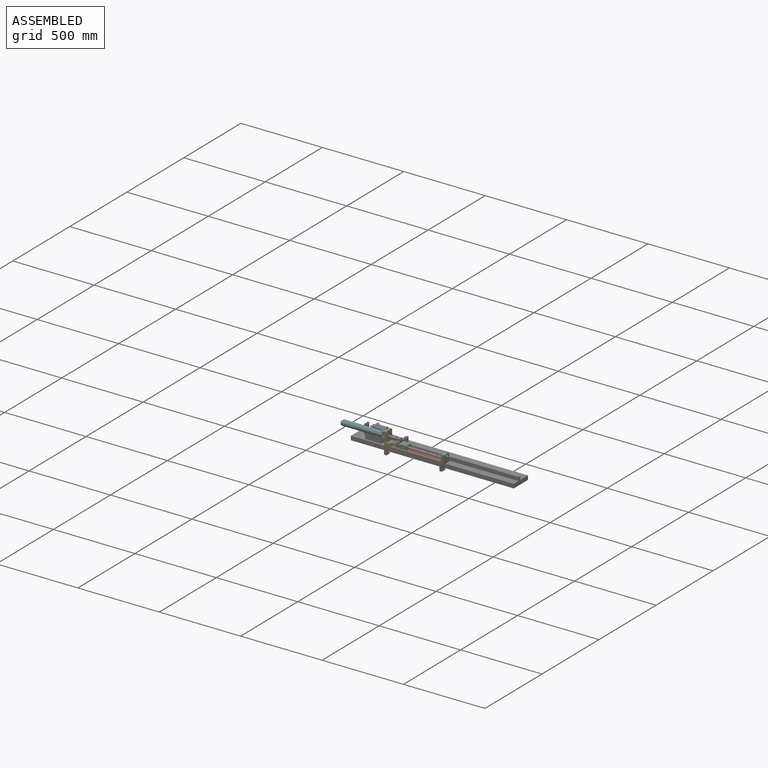
[diagram: assembled view]
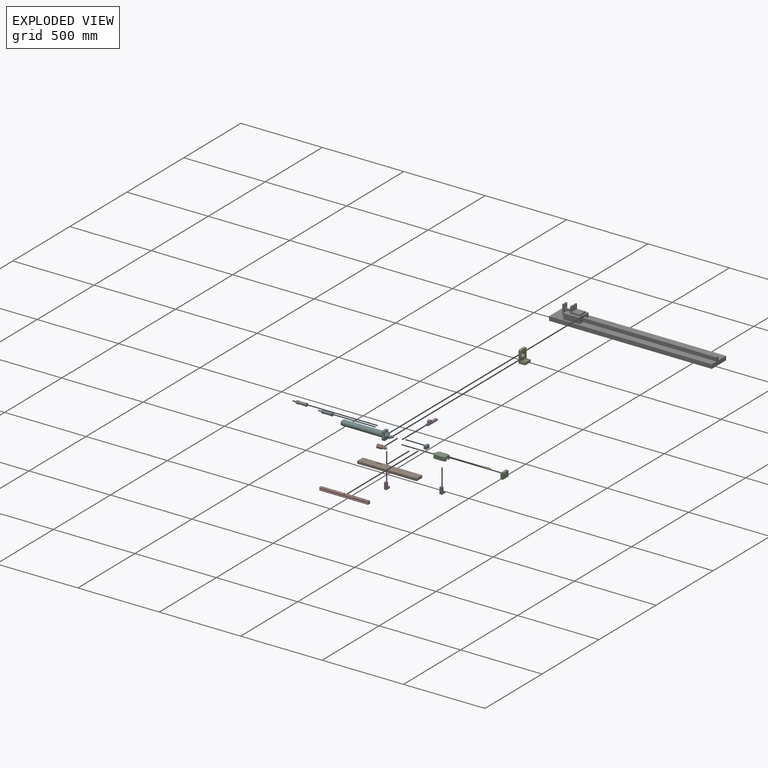
[diagram: exploded view]
GUIDED TOUR — MATED ASSEMBLY (Onshape document f935814cf0b3235206766590, AutoMate assembly f935814cf0b3235206766590_0b8956ea74bc2b2caeea1ce2_f27f7069bc612b94456843f6_default)

This assembly has 15 components, labeled P0..P14 below (a component is one placed occurrence of a part; the same part can appear more than once), held together by 35 mates. A mate is a constraint between two components; its type names the relative motion it leaves free:
  CYLINDRICAL — leaves both rotation about and translation along the listed axis free,
  PLANAR — leaves sliding in the plane through the listed point (normal = the listed direction) and rotation about that normal free,
  SLIDER — leaves translation along the listed axis free.
Axis/direction vectors are unit vectors and 'through' points are millimeter coordinates, both in the assembly's world frame.

MATES
  1. PLANAR "Planar 5": P4 <-> P1, direction (0.000, -1.000, 0.000) through (124.01, -184.45, 217.09) mm
  2. PLANAR "Planar 16": P6 <-> P1, direction (-1.000, 0.000, 0.000) through (-106.99, -103.95, 174.59) mm
  3. PLANAR "Planar 14": P1 <-> P3, direction (0.000, 0.000, -1.000) through (292.76, -159.47, 187.09) mm
  4. PLANAR "Planar 24": P10 <-> P12, direction (-1.000, 0.000, 0.000) through (459.01, -159.45, 237.09) mm
  5. PLANAR "Planar 10": P7 <-> P1, direction (0.000, -1.000, 0.000) through (304.01, -174.45, 204.59) mm
  6. PLANAR "Planar 23": P10 <-> P1, direction (1.000, 0.000, 0.000) through (474.01, -159.45, 219.24) mm
  7. PLANAR "Planar 6": P1 <-> P4, direction (-1.000, 0.000, 0.000) through (109.01, -159.45, 194.59) mm
  8. PLANAR "Planar 9": P1 <-> P7, direction (-1.000, 0.000, 0.000) through (109.01, -184.45, 194.59) mm
  9. SLIDER "Slider 1": P6 <-> P14, axis (1.000, 0.000, 0.000) through (13.01, -106.45, 252.09) mm
  10. PLANAR "Planar 1": P14 <-> P6, direction (-1.000, 0.000, 0.000) through (13.01, -110.48, 261.24) mm
  11. CYLINDRICAL "Cylindrical 5": P11 <-> P2, axis (0.000, 0.000, 1.000) through (194.01, -180.45, 241.09) mm
  12. PLANAR "Planar 2": P6 <-> P0, direction (1.000, 0.000, 0.000) through (13.01, -116.45, 246.50) mm
  13. PLANAR "Planar 11": P11 <-> P7, direction (0.000, 0.000, -1.000) through (194.01, -180.45, 232.09) mm
  14. CYLINDRICAL "Cylindrical 9": P1 <-> P8, axis (0.000, 0.000, -1.000) through (456.51, -176.95, 187.09) mm
  15. CYLINDRICAL "Cylindrical 11": P13 <-> P9, axis (1.000, 0.000, 0.000) through (145.51, -164.45, 247.09) mm
  16. PLANAR "Planar 21": P1 <-> P10, direction (0.000, 0.000, 1.000) through (474.01, -159.45, 202.09) mm
  17. CYLINDRICAL "Cylindrical 4": P13 <-> P4, axis (1.000, 0.000, 0.000) through (109.01, -164.45, 247.09) mm
  18. PLANAR "Planar 13": P8 <-> P1, direction (0.000, 0.000, 1.000) through (449.01, -176.95, 187.09) mm
  19. CYLINDRICAL "Cylindrical 8": P5 <-> P11, axis (0.000, 0.000, 1.000) through (194.01, -123.95, 232.09) mm
  20. PLANAR "Planar 20": P11 <-> P9, direction (-1.000, 0.000, 0.000) through (186.51, -174.45, 246.59) mm
  21. CYLINDRICAL "Cylindrical 7": P5 <-> P11, axis (0.000, 0.000, 1.000) through (194.01, -108.95, 232.09) mm
  22. PLANAR "Planar 15": P9 <-> P13, direction (-1.000, 0.000, 0.000) through (145.51, -164.45, 235.09) mm
  23. CYLINDRICAL "Cylindrical 10": P3 <-> P1, axis (0.000, 0.000, 1.000) through (116.51, -176.95, 187.09) mm
  24. CYLINDRICAL "Cylindrical 2": P12 <-> P10, axis (-1.000, 0.000, 0.000) through (464.11, -159.45, 227.09) mm
  25. PLANAR "Planar 8": P7 <-> P1, direction (0.000, 0.000, -1.000) through (304.01, -170.45, 202.09) mm
  26. PLANAR "Planar 4": P1 <-> P4, direction (0.000, 0.000, 1.000) through (109.01, -134.45, 202.09) mm
  27. PLANAR "Planar 22": P10 <-> P1, direction (0.000, -1.000, 0.000) through (459.01, -184.45, 202.09) mm
  28. PLANAR "Planar 17": P6 <-> P1, direction (0.000, -1.000, 0.000) through (393.00, -166.45, 174.59) mm
  29. PLANAR "Planar 3": P1 <-> P6, direction (0.000, 0.000, -1.000) through (109.01, -184.45, 187.09) mm
  30. CYLINDRICAL "Cylindrical 1": P0 <-> P6, axis (-1.000, 0.000, 0.000) through (10.71, -126.45, 252.09) mm
  31. PLANAR "Planar 18": P7 <-> P2, direction (0.000, 0.000, 1.000) through (304.01, -164.45, 220.09) mm
  32. PLANAR "Planar 12": P5 <-> P11, direction (0.000, 0.000, 1.000) through (194.01, -123.95, 232.09) mm
  33. CYLINDRICAL "Cylindrical 6": P11 <-> P2, axis (0.000, 0.000, -1.000) through (194.01, -148.45, 232.09) mm
  34. PLANAR "Planar 7": P4 <-> P13, direction (-1.000, 0.000, 0.000) through (109.01, -159.45, 279.09) mm
  35. PLANAR "Planar 19": P2 <-> P7, direction (0.000, -1.000, 0.000) through (212.01, -157.90, 211.00) mm

ASSEMBLY ORDER
  1. P13 — the base component [order verified]
  2. P4 [order verified]
  3. P9 [order verified]
  4. P1 [order verified]
  5. P10 [order verified]
  6. P11 [order verified]
  7. P0 [order verified]
  8. P5 [order verified]
  9. P12 [order verified]
  10. P7 [order verified]
  11. P14 [order verified]
  12. P2 [order verified]
  13. P6 [order verified]
  14. P8 [order verified]
  15. P3 [order verified]
(P4, P9 verified with a relaxed clearance tolerance: the source model stores slight part interference there.)
Order-tag legend:
  [order verified] — this step's position reverses a verified removal order: the component was checked to insert without passing through the ones already placed.

Of the 15 components, 7 carry the full construction recipe — the FeatureScript program that regenerates the part's solid from scratch; the rest are supplied as boundary geometry only.
Because this assembly has more than 12 components, the tour below covers the 12 most significant ones individually (every recipe-attached component first, then the largest by part volume), in assembly order; the remaining 3 are summarized together in a grouped section at the end.
Each toured component is shown spotlighted twice — in the assembled view, then in the exploded view, where a leader line traces a displaced component back to its assembled socket (saturated green if recipe-attached, orange if geometry-only; every other component desaturated gray) — followed by its recipe or geometry summary and the mates that hold it.
NOTE — this tour is split across 2 documents so each fits a 32k-token context. This is document 1: the component sections continue in the remaining 1 document, each repeating the header above.
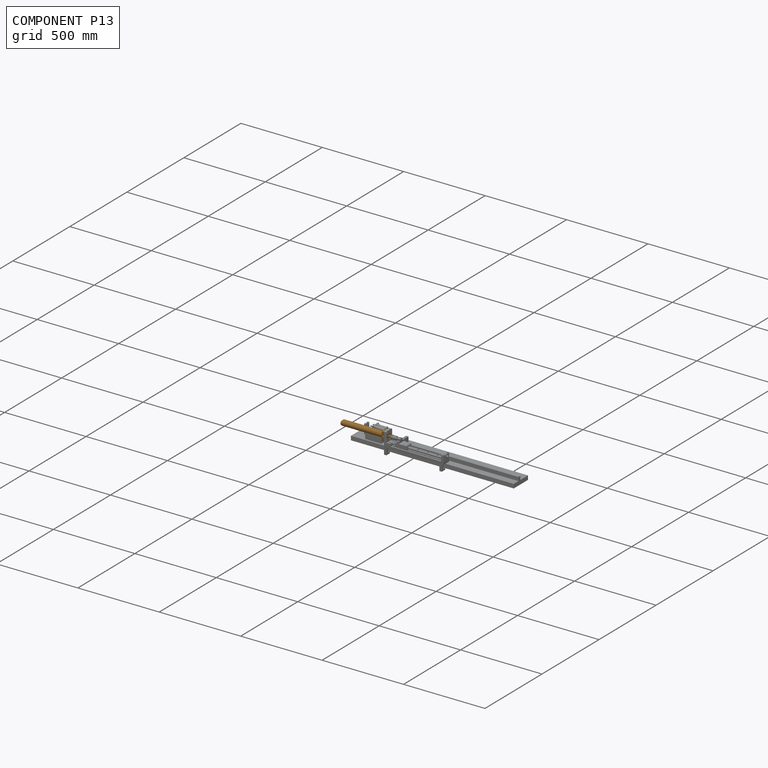
[diagram: component P13 — assembled]
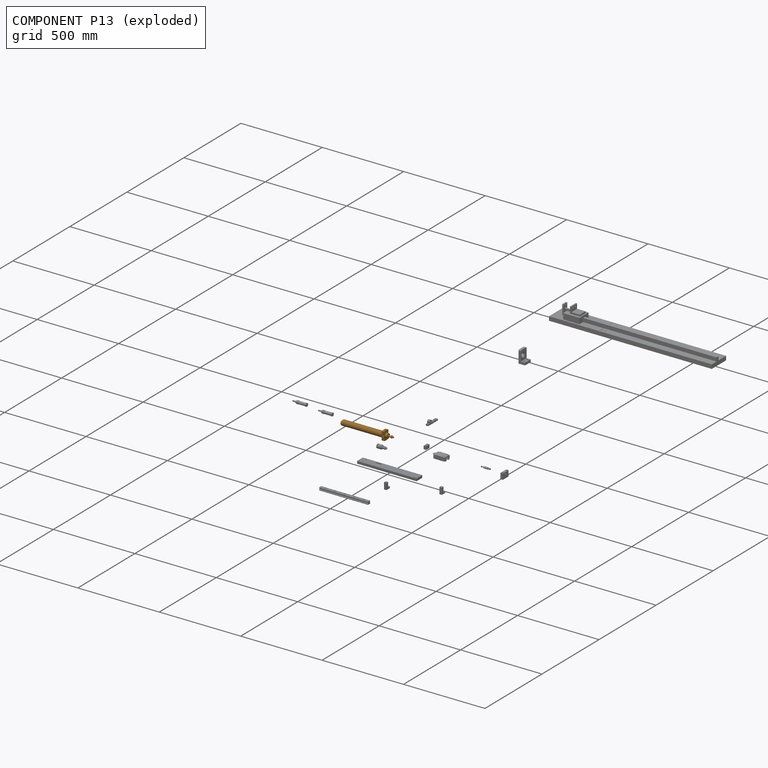
[diagram: component P13 — exploded]
COMPONENT P13 — geometry summary (no construction recipe available for this part):
  bounding box: 315.0 x 54.0 x 36.0 mm
  B-rep topology: 1 solid, 91 faces, 414 edges
  volume: 125127 mm^3 (20% of its bounding box)
Held by: CYLINDRICAL mate "Cylindrical 11" to P9; CYLINDRICAL mate "Cylindrical 4" to P4; PLANAR mate "Planar 15" to P9; PLANAR mate "Planar 7" to P4.
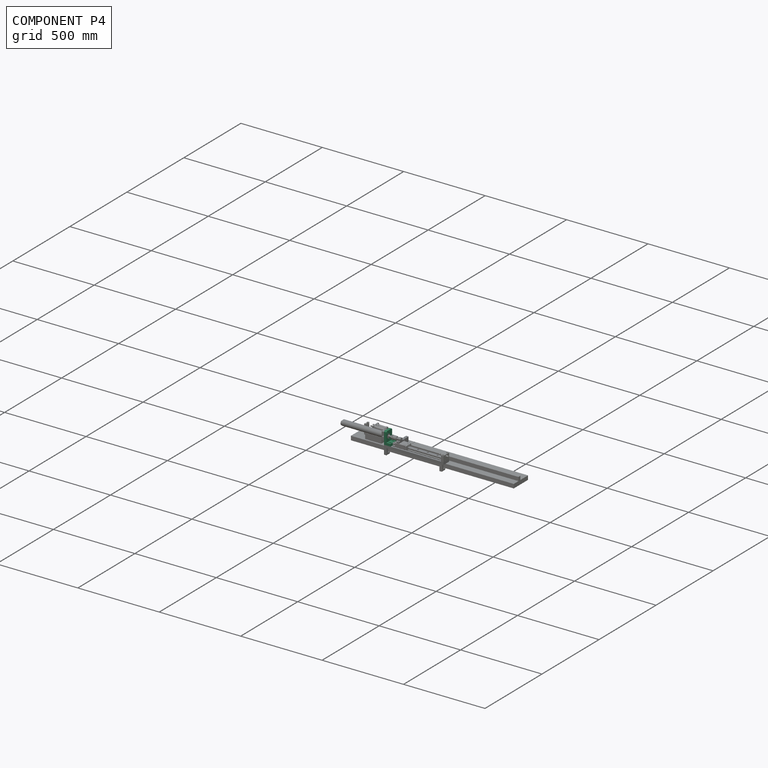
[diagram: component P4 — assembled]
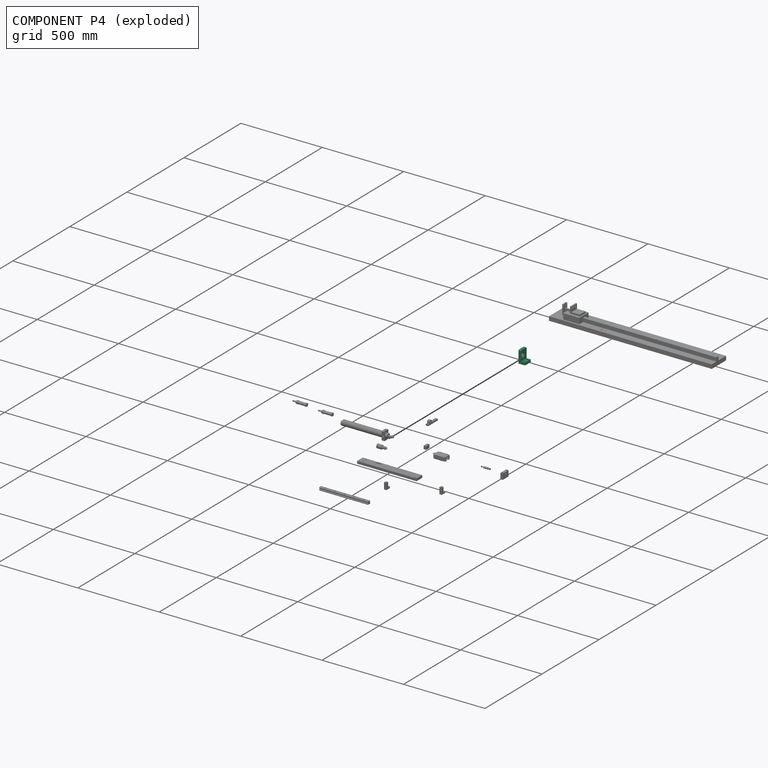
[diagram: component P4 — exploded]
COMPONENT P4 — recipe-attached (CADFS 00789697, mesh-verified: the recipe's output STEP matches this component's geometry to below the mesh-comparison resolution (tessellation chordal tolerance ~0.15 mm)).
Held by: PLANAR mate "Planar 5" to P1; PLANAR mate "Planar 6" to P1; CYLINDRICAL mate "Cylindrical 4" to P13; PLANAR mate "Planar 4" to P1; PLANAR mate "Planar 7" to P13.
Construction recipe (FeatureScript — the CAD program that rebuilds this solid; sketch coordinates are in the units given by the * unit suffixes, e.g. mm):

FeatureScript 1511;
import(path : "onshape/std/geometry.fs", version : "1511.0");
import(path : "onshape/std/common.fs", version : "1511.0");
const mm = millimeter;
const VERTEX = EntityType.VERTEX;
const EDGE = EntityType.EDGE;
const FACE = EntityType.FACE;
const BODY = EntityType.BODY;
function v(x, y){return vector(x, y);}
function OD(order){return orderDisambiguation(order);}
function OSD(set){return originalSetDisambiguation(set);}
function TD(topology){return topologyDisambiguation(topology);}
function TDD(query){return trueDependencyDisambiguation(query);}
function sQuery(a, b, c) {return sketchEntityQuery(a, b, c);}

annotation { "Feature Type Name" : "Feature", "Feature Type Description" : "" }
export const myFeature = defineFeature(function(context is Context, id is Id, definition is map)
    precondition{}
    {
        {
            var Q0;
            Q0=qCreatedBy(makeId("Top.planeOp"),FACE);
            var sketch = newSketch(context, id + "F0", { "sketchPlane" : qUnion([Q0])});
            skLineSegment(sketch, "E0.bottom", {"start": v(0, 0) * mm, "end": v(40, 0) * mm});
            skLineSegment(sketch, "E0.top", {"start": v(0, 50) * mm, "end": v(40, 50) * mm});
            skLineSegment(sketch, "E0.left", {"start": v(0, 0) * mm, "end": v(0, 50) * mm});
            skLineSegment(sketch, "E0.right", {"start": v(40, 0) * mm, "end": v(40, 50) * mm});
            skSolve(sketch);
        }
        {
            var Q0;
            Q0 = qSketchRegion(id + "F0", true);
            extrude(context, id + "F1", {"entities" : qUnion([Q0]), "depth" : 15 * mm, "offsetDistance" : 25 * mm});
        }
        {
            var Q0;
            Q0=makeQuery(id+"F1.opExtrude","CAP_FACE",FACE,{"disambiguationData":[OSD([sQuery(id+"F0.wireOp",EDGE,"E0.bottom"),sQuery(id+"F0.wireOp",EDGE,"E0.top"),sQuery(id+"F0.wireOp",EDGE,"E0.left"),sQuery(id+"F0.wireOp",EDGE,"E0.right")])],"isStart":false});
            var sketch = newSketch(context, id + "F2", { "sketchPlane" : qUnion([Q0])});
            skLineSegment(sketch, "E1.bottom", {"start": v(0, 0) * mm, "end": v(15, 0) * mm});
            skLineSegment(sketch, "E1.top", {"start": v(0, 50) * mm, "end": v(15, 50) * mm});
            skLineSegment(sketch, "E1.left", {"start": v(0, 0) * mm, "end": v(0, 50) * mm});
            skLineSegment(sketch, "E1.right", {"start": v(15, 0) * mm, "end": v(15, 50) * mm});
            skSolve(sketch);
        }
        {
            var Q0;
            Q0 = qSketchRegion(id + "F2", true);
            extrude(context, id + "F3", {"entities" : qUnion([Q0]), "operationType" : NewBodyOperationType.ADD, "depth" : 62 * mm, "offsetDistance" : 25 * mm});
        }
        {
            var Q0;
            Q0=makeQuery(id+"F3.opExtrude","SWEPT_FACE",FACE,{"disambiguationData":[OSD([sQuery(id+"F2.wireOp",EDGE,"E1.right")])]});
            var sketch = newSketch(context, id + "F4", { "sketchPlane" : qUnion([Q0])});
            skCircle(sketch, "E2", {"center": v(20, 45) * mm, "radius": 14 * mm});
            skSolve(sketch);
        }
        {
            var Q0;
            Q0 = qSketchRegion(id + "F4", true);
            extrude(context, id + "F5", {"entities" : qUnion([Q0]), "operationType" : NewBodyOperationType.REMOVE, "endBound" : BoundingType.UP_TO_NEXT, "oppositeDirection" : true, "depth" : 25 * mm, "offsetDistance" : 25 * mm});
        }
        {
            var Q0;
            Q0=makeQuery(id+"F3.opExtrude","CAP_EDGE",EDGE,{"disambiguationData":[OSD([sQuery(id+"F2.wireOp",EDGE,"E1.top")])],"isStart":false});
            var Q1;
            Q1=makeQuery(id+"F3.opExtrude","CAP_EDGE",EDGE,{"disambiguationData":[OSD([sQuery(id+"F2.wireOp",EDGE,"E1.bottom")])],"isStart":false});
            chamfer(context, id + "F6", {"entities" : qUnion([Q0, Q1]), "width" : 5 * mm, "tangentPropagation" : true});
        }
        {
            var Q0;
            Q0=makeQuery(id+"F3.opExtrude","SWEPT_FACE",FACE,{"disambiguationData":[OSD([sQuery(id+"F2.wireOp",EDGE,"E1.right")])]});
            var sketch = newSketch(context, id + "F7", { "sketchPlane" : qUnion([Q0])});
            skCircle(sketch, "E3", {"center": v(8, 66) * mm, "radius": 2.5 * mm});
            skCircle(sketch, "E4", {"center": v(32, 24) * mm, "radius": 2.5 * mm});
            skSolve(sketch);
        }
        {
            var Q0;
            Q0 = qSketchRegion(id + "F7", true);
            extrude(context, id + "F8", {"entities" : qUnion([Q0]), "operationType" : NewBodyOperationType.REMOVE, "endBound" : BoundingType.UP_TO_NEXT, "oppositeDirection" : true, "depth" : 25 * mm, "offsetDistance" : 25 * mm});
        }
        {
            var Q0;
            Q0=makeQuery(id+"F1.opExtrude","CAP_FACE",FACE,{"disambiguationData":[OSD([sQuery(id+"F0.wireOp",EDGE,"E0.bottom"),sQuery(id+"F0.wireOp",EDGE,"E0.top"),sQuery(id+"F0.wireOp",EDGE,"E0.left"),sQuery(id+"F0.wireOp",EDGE,"E0.right")])],"isStart":false});
            var sketch = newSketch(context, id + "F9", { "sketchPlane" : qUnion([Q0])});
            skLineSegment(sketch, "E5", {"start": v(22.5, 42) * mm, "end": v(32.5, 42) * mm});
            skArc(sketch, "E6", {"start": v(32.5, 34) * mm, "mid": v(36.5, 38) * mm, "end": v(32.5, 42) * mm});
            skArc(sketch, "E7", {"start": v(22.5, 42) * mm, "mid": v(18.5, 38) * mm, "end": v(22.5, 34) * mm});
            skLineSegment(sketch, "E8", {"start": v(22.5, 34) * mm, "end": v(32.5, 34) * mm});
            skLineSegment(sketch, "E9", {"start": v(22.5, 16) * mm, "end": v(32.5, 16) * mm});
            skArc(sketch, "E10", {"start": v(32.5, 8) * mm, "mid": v(36.5, 12) * mm, "end": v(32.5, 16) * mm});
            skArc(sketch, "E11", {"start": v(22.5, 16) * mm, "mid": v(18.5, 12) * mm, "end": v(22.5, 8) * mm});
            skLineSegment(sketch, "E12", {"start": v(22.5, 8) * mm, "end": v(32.5, 8) * mm});
            skSolve(sketch);
        }
        {
            var Q0;
            Q0 = qSketchRegion(id + "F9", true);
            extrude(context, id + "F10", {"entities" : qUnion([Q0]), "operationType" : NewBodyOperationType.REMOVE, "endBound" : BoundingType.UP_TO_NEXT, "oppositeDirection" : true, "depth" : 25 * mm, "offsetDistance" : 25 * mm});
        }
    });
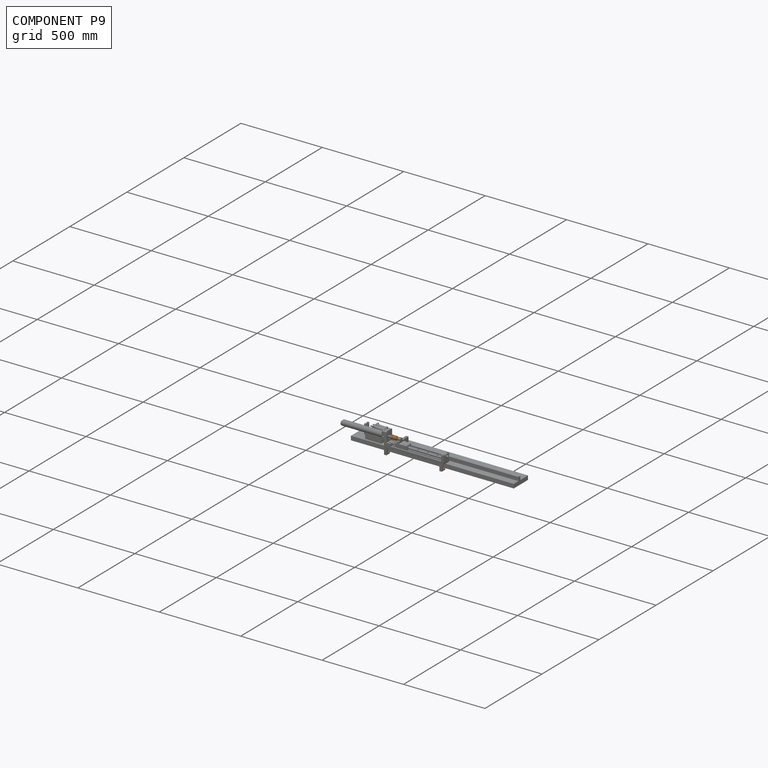
[diagram: component P9 — assembled]
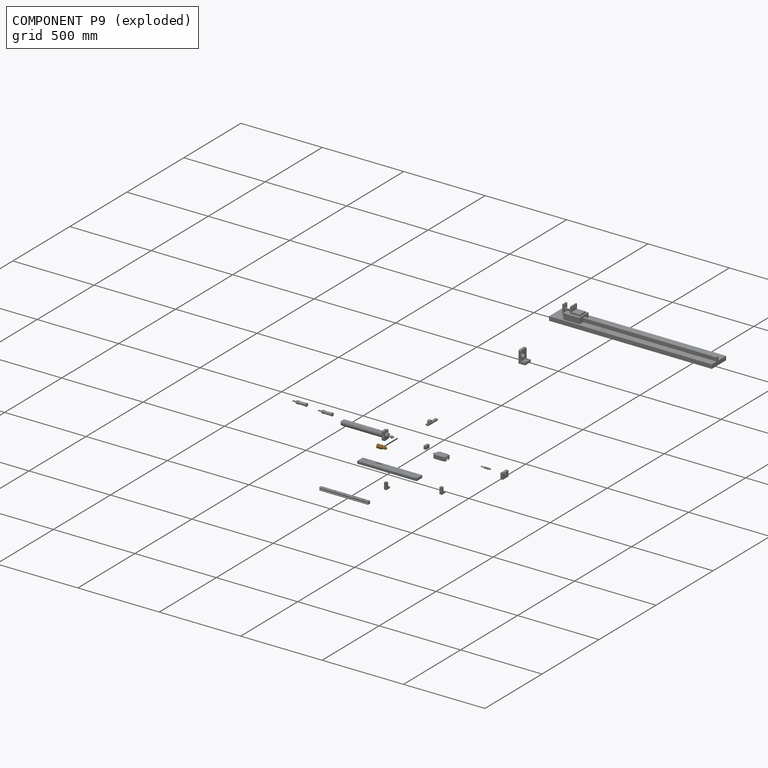
[diagram: component P9 — exploded]
COMPONENT P9 — geometry summary (no construction recipe available for this part):
  bounding box: 57.6 x 26.1 x 24.6 mm
  B-rep topology: 1 solid, 80 faces, 398 edges
  volume: 15844 mm^3 (43% of its bounding box)
  symmetry: 6-fold rotationally symmetric about the x axis; mirror-symmetric across its y mid-plane, z mid-plane
Held by: CYLINDRICAL mate "Cylindrical 11" to P13; PLANAR mate "Planar 20" to P11; PLANAR mate "Planar 15" to P13.
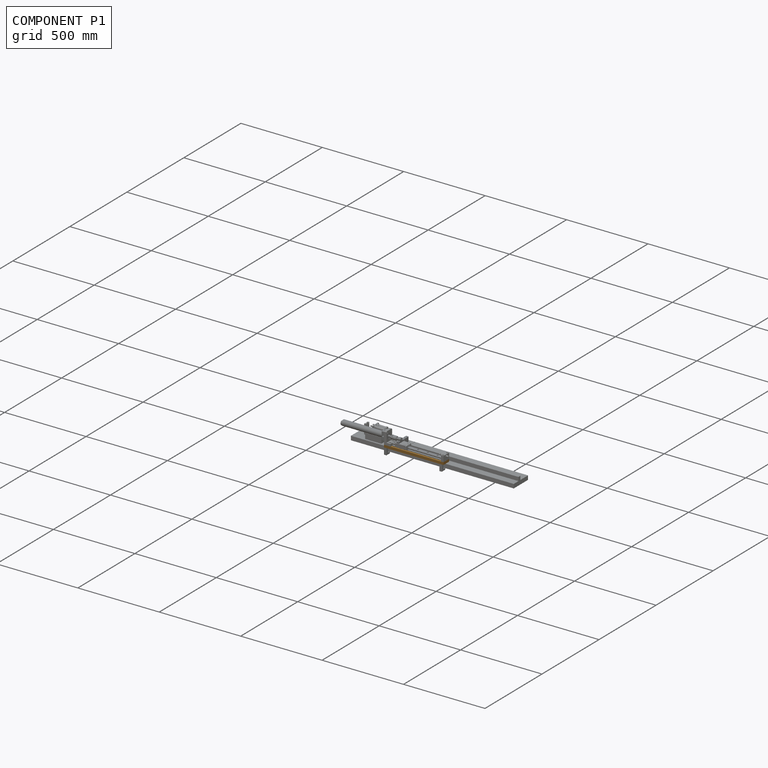
[diagram: component P1 — assembled]
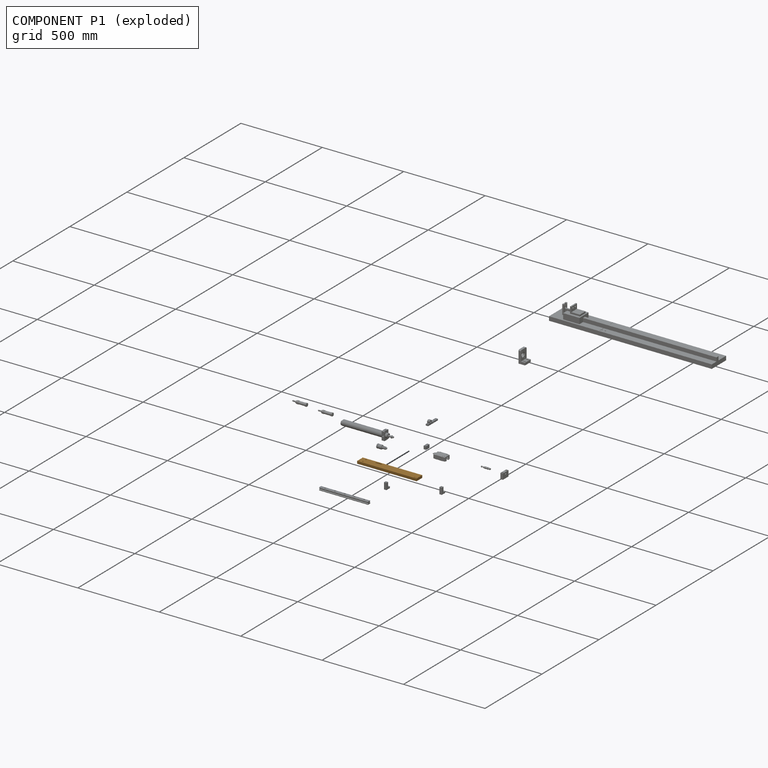
[diagram: component P1 — exploded]
COMPONENT P1 — geometry summary (no construction recipe available for this part):
  bounding box: 365.0 x 50.0 x 15.0 mm
  B-rep topology: 1 solid, 20 faces, 108 edges
  volume: 267781 mm^3 (98% of its bounding box)
Held by: PLANAR mate "Planar 5" to P4; PLANAR mate "Planar 16" to P6; PLANAR mate "Planar 14" to P3; PLANAR mate "Planar 10" to P7; PLANAR mate "Planar 23" to P10; PLANAR mate "Planar 6" to P4; PLANAR mate "Planar 9" to P7; CYLINDRICAL mate "Cylindrical 9" to P8; PLANAR mate "Planar 21" to P10; PLANAR mate "Planar 13" to P8; CYLINDRICAL mate "Cylindrical 10" to P3; PLANAR mate "Planar 8" to P7; PLANAR mate "Planar 4" to P4; PLANAR mate "Planar 22" to P10; PLANAR mate "Planar 17" to P6; PLANAR mate "Planar 3" to P6.
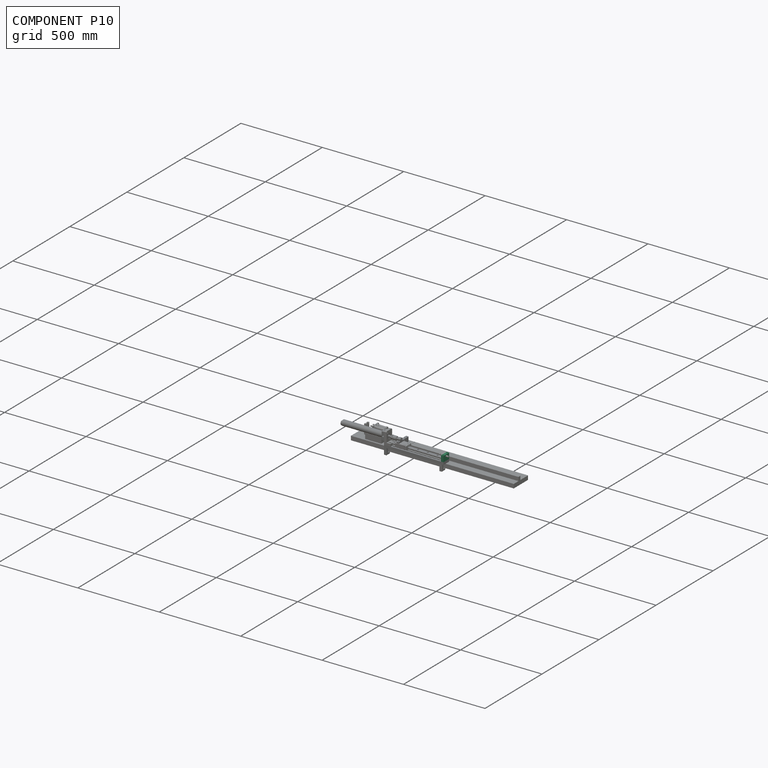
[diagram: component P10 — assembled]
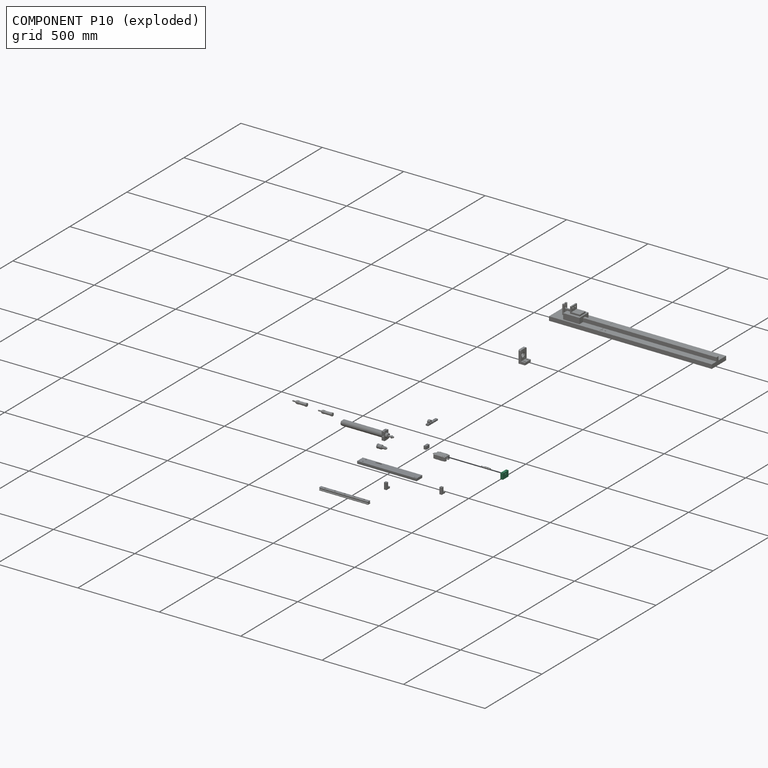
[diagram: component P10 — exploded]
COMPONENT P10 — recipe-attached (CADFS 00789690, mesh-verified: the recipe's output STEP matches this component's geometry to below the mesh-comparison resolution (tessellation chordal tolerance ~0.0943 mm)).
Held by: PLANAR mate "Planar 24" to P12; PLANAR mate "Planar 23" to P1; PLANAR mate "Planar 21" to P1; CYLINDRICAL mate "Cylindrical 2" to P12; PLANAR mate "Planar 22" to P1.
Construction recipe (FeatureScript — the CAD program that rebuilds this solid; sketch coordinates are in the units given by the * unit suffixes, e.g. mm):

FeatureScript 1511;
import(path : "onshape/std/geometry.fs", version : "1511.0");
import(path : "onshape/std/common.fs", version : "1511.0");
const mm = millimeter;
const VERTEX = EntityType.VERTEX;
const EDGE = EntityType.EDGE;
const FACE = EntityType.FACE;
const BODY = EntityType.BODY;
function v(x, y){return vector(x, y);}
function OD(order){return orderDisambiguation(order);}
function OSD(set){return originalSetDisambiguation(set);}
function TD(topology){return topologyDisambiguation(topology);}
function TDD(query){return trueDependencyDisambiguation(query);}
function sQuery(a, b, c) {return sketchEntityQuery(a, b, c);}

annotation { "Feature Type Name" : "Feature", "Feature Type Description" : "" }
export const myFeature = defineFeature(function(context is Context, id is Id, definition is map)
    precondition{}
    {
        {
            var Q0;
            Q0=qCreatedBy(makeId("Top.planeOp"),FACE);
            var sketch = newSketch(context, id + "F0", { "sketchPlane" : qUnion([Q0])});
            skLineSegment(sketch, "E0.bottom", {"start": v(7.5, -25) * mm, "end": v(-7.5, -25) * mm});
            skLineSegment(sketch, "E0.top", {"start": v(7.5, 25) * mm, "end": v(-7.5, 25) * mm});
            skLineSegment(sketch, "E0.left", {"start": v(7.5, -25) * mm, "end": v(7.5, 25) * mm});
            skLineSegment(sketch, "E0.right", {"start": v(-7.5, -25) * mm, "end": v(-7.5, 25) * mm});
            skPoint(sketch, "E0.middle", {"position": v(0, 0) * mm});
            skSolve(sketch);
        }
        {
            var Q0;
            Q0 = qSketchRegion(id + "F0", true);
            extrude(context, id + "F1", {"entities" : qUnion([Q0]), "depth" : 35 * mm, "offsetDistance" : 25 * mm});
        }
        {
            var Q0;
            Q0=makeQuery(id+"F1.opExtrude","SWEPT_FACE",FACE,{"disambiguationData":[OSD([sQuery(id+"F0.wireOp",EDGE,"E0.left")])]});
            var sketch = newSketch(context, id + "F2", { "sketchPlane" : qUnion([Q0])});
            skCircle(sketch, "E1", {"center": v(0, 25) * mm, "radius": 5 * mm});
            skSolve(sketch);
        }
        {
            var Q0;
            Q0 = qSketchRegion(id + "F2", true);
            extrude(context, id + "F3", {"entities" : qUnion([Q0]), "operationType" : NewBodyOperationType.REMOVE, "endBound" : BoundingType.UP_TO_NEXT, "oppositeDirection" : true, "depth" : 25 * mm, "offsetDistance" : 25 * mm});
        }
        {
            var Q0;
            Q0=makeQuery(id+"F1.opExtrude","CAP_FACE",FACE,{"disambiguationData":[OSD([sQuery(id+"F0.wireOp",EDGE,"E0.bottom"),sQuery(id+"F0.wireOp",EDGE,"E0.top"),sQuery(id+"F0.wireOp",EDGE,"E0.left"),sQuery(id+"F0.wireOp",EDGE,"E0.right")])],"isStart":false});
            var sketch = newSketch(context, id + "F4", { "sketchPlane" : qUnion([Q0])});
            skCircle(sketch, "E2", {"center": v(0, -17.5) * mm, "radius": 3.5 * mm});
            skCircle(sketch, "E3.MirrorC", {"center": v(0, 17.5) * mm, "radius": 3.5 * mm});
            skSolve(sketch);
        }
        {
            var Q0;
            Q0 = qSketchRegion(id + "F4", true);
            extrude(context, id + "F5", {"entities" : qUnion([Q0]), "operationType" : NewBodyOperationType.REMOVE, "endBound" : BoundingType.UP_TO_NEXT, "oppositeDirection" : true, "depth" : 25 * mm, "offsetDistance" : 25 * mm});
        }
        {
            var Q0;
            Q0=makeQuery(id+"F1.opExtrude","CAP_FACE",FACE,{"disambiguationData":[OSD([sQuery(id+"F0.wireOp",EDGE,"E0.bottom"),sQuery(id+"F0.wireOp",EDGE,"E0.top"),sQuery(id+"F0.wireOp",EDGE,"E0.left"),sQuery(id+"F0.wireOp",EDGE,"E0.right")])],"isStart":false});
            var sketch = newSketch(context, id + "F6", { "sketchPlane" : qUnion([Q0])});
            skCircle(sketch, "E4", {"center": v(0, -17.5) * mm, "radius": 5.5 * mm});
            skCircle(sketch, "E5", {"center": v(0, 17.5) * mm, "radius": 5.5 * mm});
            skSolve(sketch);
        }
        {
            var Q0;
            Q0 = qSketchRegion(id + "F6", true);
            extrude(context, id + "F7", {"entities" : qUnion([Q0]), "operationType" : NewBodyOperationType.REMOVE, "oppositeDirection" : true, "depth" : 9.5 * mm, "offsetDistance" : 25 * mm});
        }
    });
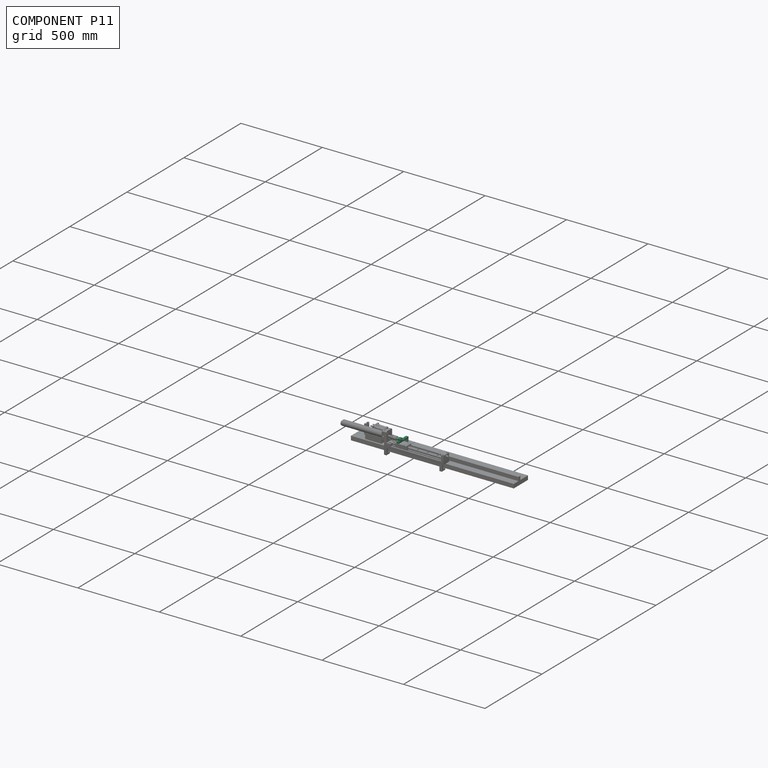
[diagram: component P11 — assembled]
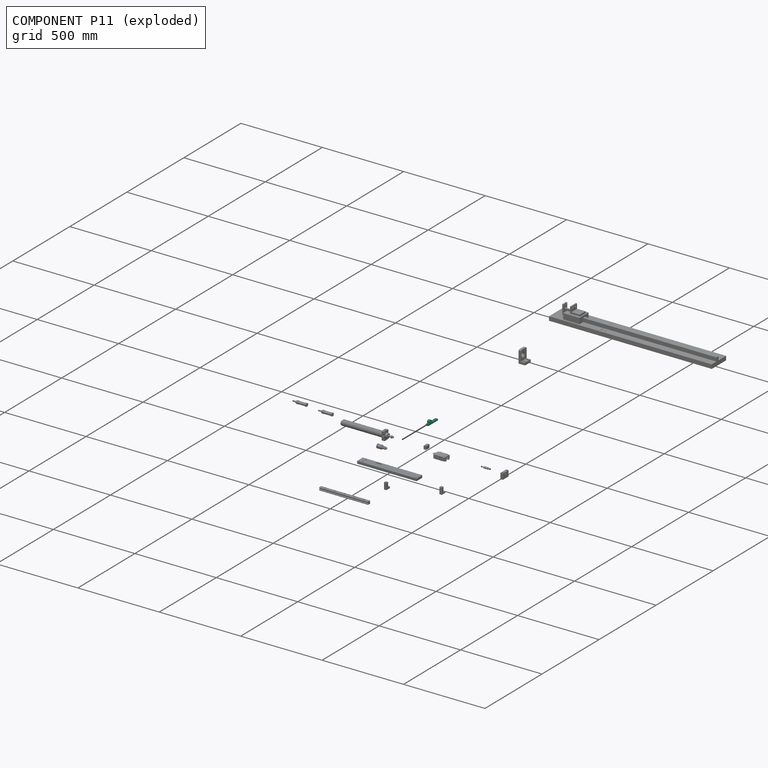
[diagram: component P11 — exploded]
COMPONENT P11 — recipe-attached (CADFS 00789693, mesh-verified: the recipe's output STEP matches this component's geometry to below the mesh-comparison resolution (tessellation chordal tolerance ~0.135 mm)).
Held by: CYLINDRICAL mate "Cylindrical 5" to P2; PLANAR mate "Planar 11" to P7; CYLINDRICAL mate "Cylindrical 8" to P5; PLANAR mate "Planar 20" to P9; CYLINDRICAL mate "Cylindrical 7" to P5; PLANAR mate "Planar 12" to P5; CYLINDRICAL mate "Cylindrical 6" to P2.
Construction recipe (FeatureScript — the CAD program that rebuilds this solid; sketch coordinates are in the units given by the * unit suffixes, e.g. mm):

FeatureScript 1511;
import(path : "onshape/std/geometry.fs", version : "1511.0");
import(path : "onshape/std/common.fs", version : "1511.0");
const mm = millimeter;
const VERTEX = EntityType.VERTEX;
const EDGE = EntityType.EDGE;
const FACE = EntityType.FACE;
const BODY = EntityType.BODY;
function v(x, y){return vector(x, y);}
function OD(order){return orderDisambiguation(order);}
function OSD(set){return originalSetDisambiguation(set);}
function TD(topology){return topologyDisambiguation(topology);}
function TDD(query){return trueDependencyDisambiguation(query);}
function sQuery(a, b, c) {return sketchEntityQuery(a, b, c);}

annotation { "Feature Type Name" : "Feature", "Feature Type Description" : "" }
export const myFeature = defineFeature(function(context is Context, id is Id, definition is map)
    precondition{}
    {
        {
            var Q0;
            Q0=qCreatedBy(makeId("Right.planeOp"),FACE);
            var sketch = newSketch(context, id + "F0", { "sketchPlane" : qUnion([Q0])});
            skLineSegment(sketch, "E0", {"start": v(0, 0) * mm, "end": v(0, 85) * mm});
            skLineSegment(sketch, "E1", {"start": v(0, 85) * mm, "end": v(9, 85) * mm});
            skLineSegment(sketch, "E2", {"start": v(9, 85) * mm, "end": v(9, 32) * mm});
            skLineSegment(sketch, "E3", {"start": v(9, 32) * mm, "end": v(25, 32) * mm});
            skLineSegment(sketch, "E4", {"start": v(25, 32) * mm, "end": v(25, 12) * mm});
            skLineSegment(sketch, "E5", {"start": v(25, 12) * mm, "end": v(9, 12) * mm});
            skLineSegment(sketch, "E6", {"start": v(9, 12) * mm, "end": v(9, 0) * mm});
            skLineSegment(sketch, "E7", {"start": v(9, 0) * mm, "end": v(0, 0) * mm});
            skCircle(sketch, "E8", {"center": v(15, 22) * mm, "radius": 5 * mm});
            skCircle(sketch, "E9", {"center": v(5, 48) * mm, "radius": 2.5 * mm});
            skSolve(sketch);
        }
        {
            var Q0;
            Q0 = qSketchRegion(id + "F0", true);
            extrude(context, id + "F1", {"entities" : qUnion([Q0]), "depth" : 15 * mm, "offsetDistance" : 25 * mm});
        }
        {
            var Q0;
            Q0=makeQuery(id+"F1.opExtrude","SWEPT_EDGE",EDGE,{"disambiguationData":[OSD([sQuery(id+"F0.wireOp",EDGE,"E3"),sQuery(id+"F0.wireOp",EDGE,"E4")])]});
            var Q1;
            Q1=makeQuery(id+"F1.opExtrude","SWEPT_EDGE",EDGE,{"disambiguationData":[OSD([sQuery(id+"F0.wireOp",EDGE,"E4"),sQuery(id+"F0.wireOp",EDGE,"E5")])]});
            chamfer(context, id + "F2", {"entities" : qUnion([Q0, Q1]), "width" : 5 * mm, "tangentPropagation" : true});
        }
        {
            var Q0;
            Q0=makeQuery(id+"F1.opExtrude","SWEPT_FACE",FACE,{"disambiguationData":[OSD([sQuery(id+"F0.wireOp",EDGE,"E2")])]});
            var sketch = newSketch(context, id + "F3", { "sketchPlane" : qUnion([Q0])});
            skCircle(sketch, "E10", {"center": v(-7.5, 77.5) * mm, "radius": 3 * mm});
            skCircle(sketch, "E11", {"center": v(-7.5, 62.5) * mm, "radius": 3 * mm});
            skCircle(sketch, "E12", {"center": v(-7.5, 6) * mm, "radius": 3 * mm});
            skCircle(sketch, "E13", {"center": v(-7.5, 38) * mm, "radius": 3 * mm});
            skSolve(sketch);
        }
        {
            var Q0;
            Q0 = qSketchRegion(id + "F3", true);
            extrude(context, id + "F4", {"entities" : qUnion([Q0]), "operationType" : NewBodyOperationType.REMOVE, "endBound" : BoundingType.UP_TO_NEXT, "oppositeDirection" : true, "depth" : 25 * mm, "offsetDistance" : 25 * mm});
        }
    });
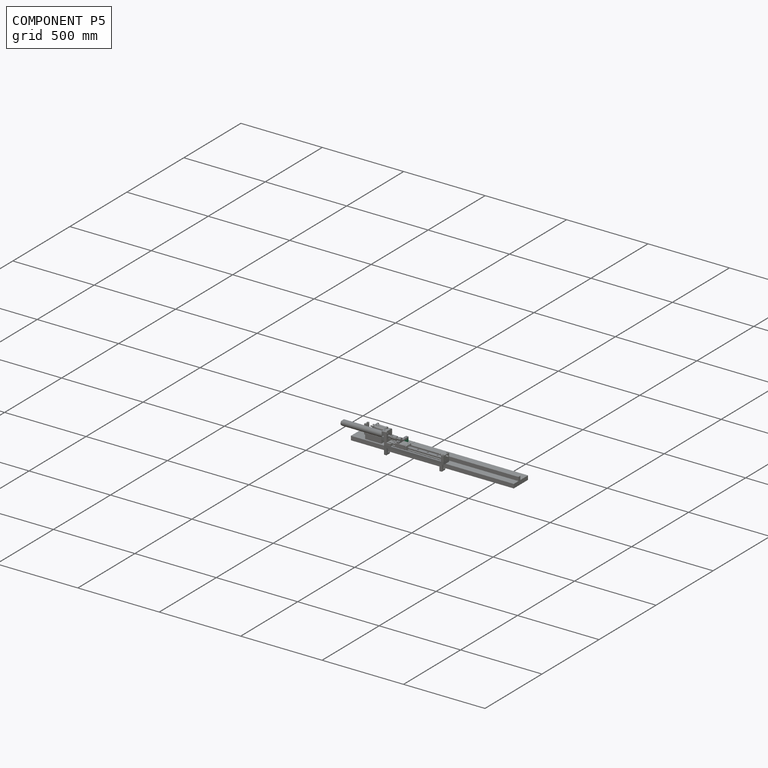
[diagram: component P5 — assembled]
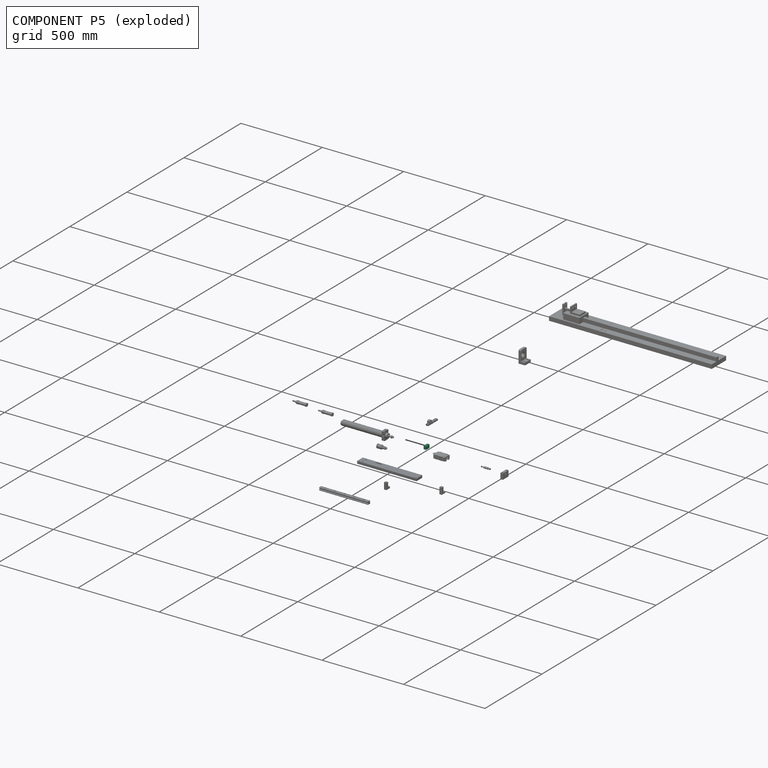
[diagram: component P5 — exploded]
COMPONENT P5 — recipe-attached (CADFS 00789694, mesh-verified: the recipe's output STEP matches this component's geometry to below the mesh-comparison resolution (tessellation chordal tolerance ~0.0586 mm)).
Held by: CYLINDRICAL mate "Cylindrical 8" to P11; CYLINDRICAL mate "Cylindrical 7" to P11; PLANAR mate "Planar 12" to P11.
Construction recipe (FeatureScript — the CAD program that rebuilds this solid; sketch coordinates are in the units given by the * unit suffixes, e.g. mm):

FeatureScript 1511;
import(path : "onshape/std/geometry.fs", version : "1511.0");
import(path : "onshape/std/common.fs", version : "1511.0");
const mm = millimeter;
const VERTEX = EntityType.VERTEX;
const EDGE = EntityType.EDGE;
const FACE = EntityType.FACE;
const BODY = EntityType.BODY;
function v(x, y){return vector(x, y);}
function OD(order){return orderDisambiguation(order);}
function OSD(set){return originalSetDisambiguation(set);}
function TD(topology){return topologyDisambiguation(topology);}
function TDD(query){return trueDependencyDisambiguation(query);}
function sQuery(a, b, c) {return sketchEntityQuery(a, b, c);}

annotation { "Feature Type Name" : "Feature", "Feature Type Description" : "" }
export const myFeature = defineFeature(function(context is Context, id is Id, definition is map)
    precondition{}
    {
        {
            var Q0;
            Q0=qCreatedBy(makeId("Top.planeOp"),FACE);
            var sketch = newSketch(context, id + "F0", { "sketchPlane" : qUnion([Q0])});
            skLineSegment(sketch, "E0.bottom", {"start": v(0, 0) * mm, "end": v(15, 0) * mm});
            skLineSegment(sketch, "E0.top", {"start": v(0, 30) * mm, "end": v(15, 30) * mm});
            skLineSegment(sketch, "E0.left", {"start": v(0, 0) * mm, "end": v(0, 30) * mm});
            skLineSegment(sketch, "E0.right", {"start": v(15, 0) * mm, "end": v(15, 30) * mm});
            skSolve(sketch);
        }
        {
            var Q0;
            Q0 = qSketchRegion(id + "F0", true);
            extrude(context, id + "F1", {"entities" : qUnion([Q0]), "depth" : 20 * mm, "offsetDistance" : 25 * mm});
        }
        {
            var Q0;
            Q0=makeQuery(id+"F1.opExtrude","CAP_FACE",FACE,{"disambiguationData":[OSD([sQuery(id+"F0.wireOp",EDGE,"E0.bottom"),sQuery(id+"F0.wireOp",EDGE,"E0.top"),sQuery(id+"F0.wireOp",EDGE,"E0.left"),sQuery(id+"F0.wireOp",EDGE,"E0.right")])],"isStart":false});
            var sketch = newSketch(context, id + "F2", { "sketchPlane" : qUnion([Q0])});
            skCircle(sketch, "E1", {"center": v(7.5, 22.5) * mm, "radius": 3 * mm});
            skCircle(sketch, "E2", {"center": v(7.5, 7.5) * mm, "radius": 3 * mm});
            skSolve(sketch);
        }
        {
            var Q0;
            Q0 = qSketchRegion(id + "F2", true);
            extrude(context, id + "F3", {"entities" : qUnion([Q0]), "operationType" : NewBodyOperationType.REMOVE, "oppositeDirection" : true, "depth" : 10 * mm, "offsetDistance" : 25 * mm});
        }
    });
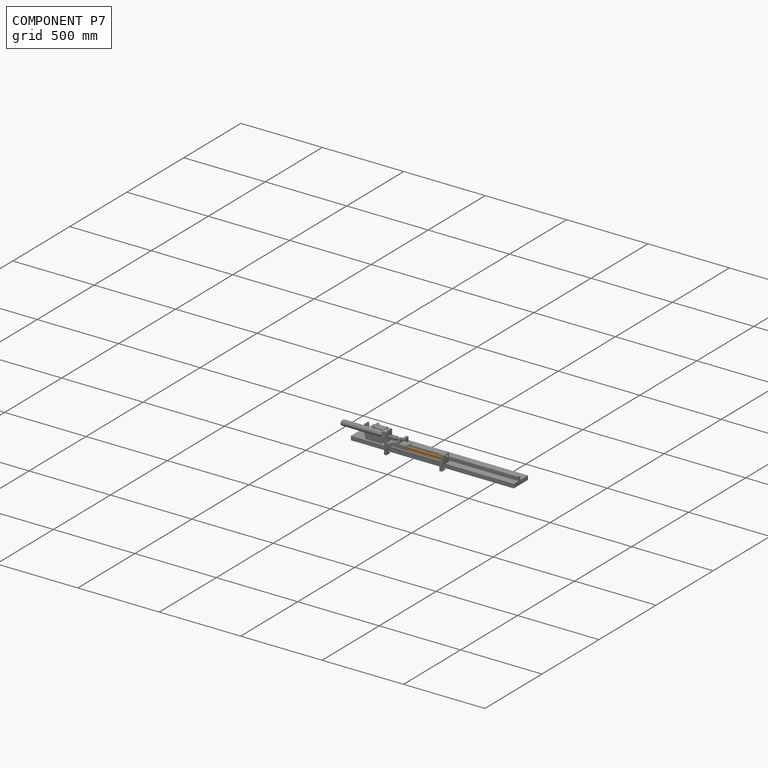
[diagram: component P7 — assembled]
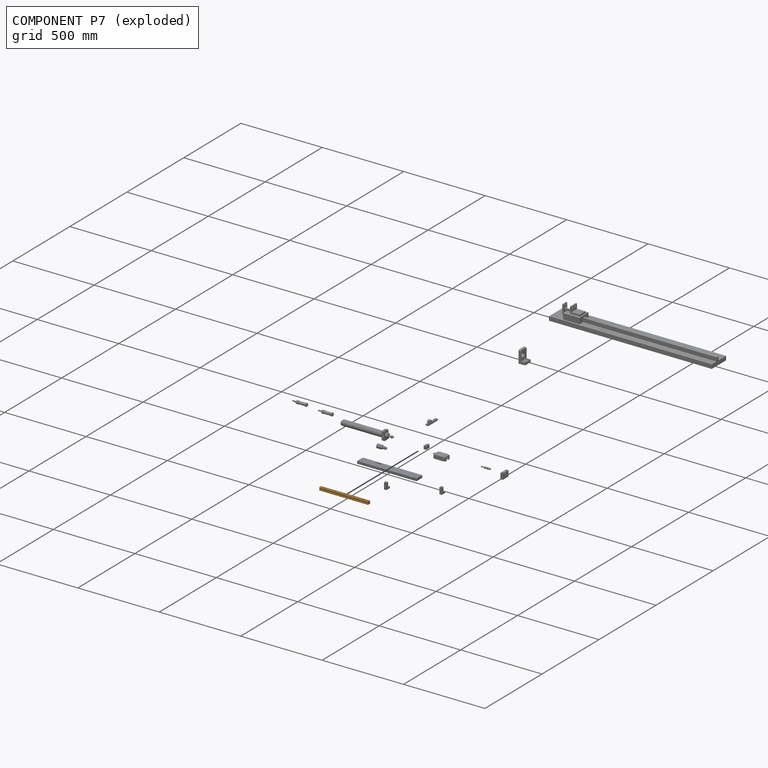
[diagram: component P7 — exploded]
COMPONENT P7 — geometry summary (no construction recipe available for this part):
  bounding box: 300.0 x 20.0 x 18.0 mm
  B-rep topology: 1 solid, 60 faces, 318 edges
  volume: 86186 mm^3 (80% of its bounding box)
  symmetry: 2-fold rotationally symmetric about the z axis; mirror-symmetric across its x mid-plane, y mid-plane
Held by: PLANAR mate "Planar 10" to P1; PLANAR mate "Planar 9" to P1; PLANAR mate "Planar 11" to P11; PLANAR mate "Planar 8" to P1; PLANAR mate "Planar 18" to P2; PLANAR mate "Planar 19" to P2.
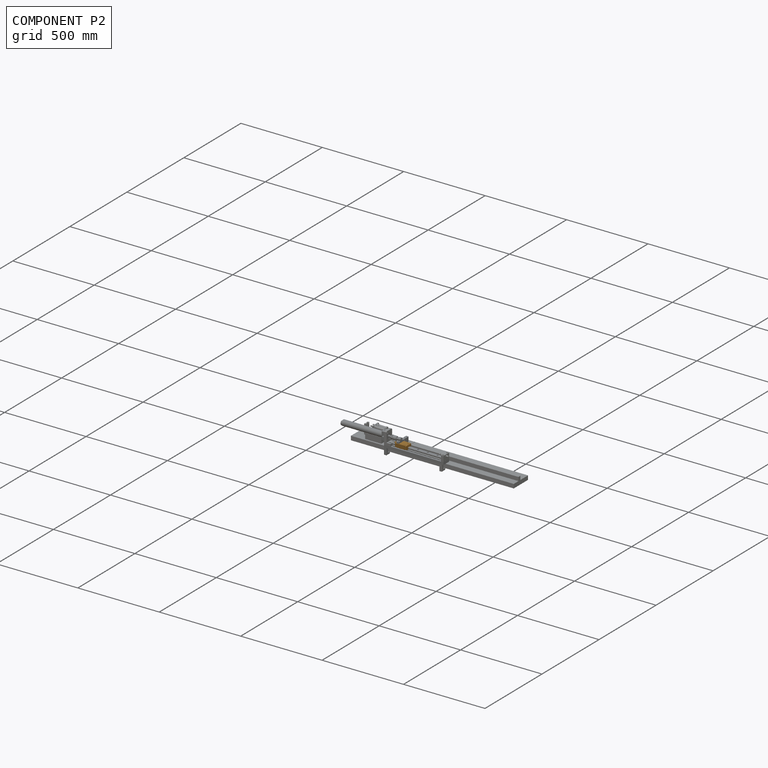
[diagram: component P2 — assembled]
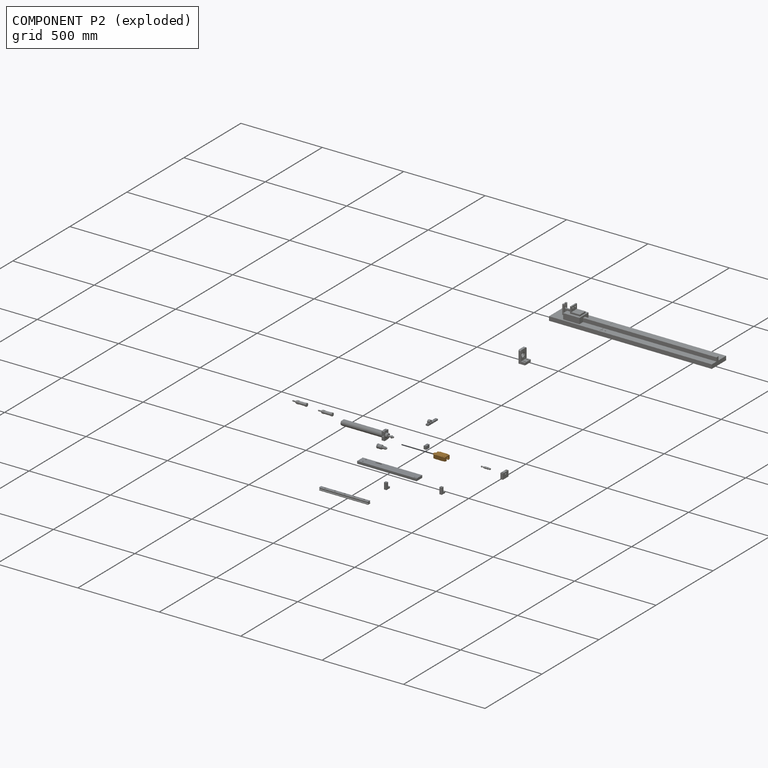
[diagram: component P2 — exploded]
COMPONENT P2 — geometry summary (no construction recipe available for this part):
  bounding box: 83.7 x 44.1 x 26.1 mm
  B-rep topology: 1 solid, 202 faces, 1044 edges
  volume: 59756 mm^3 (62% of its bounding box)
Held by: CYLINDRICAL mate "Cylindrical 5" to P11; PLANAR mate "Planar 18" to P7; CYLINDRICAL mate "Cylindrical 6" to P11; PLANAR mate "Planar 19" to P7.
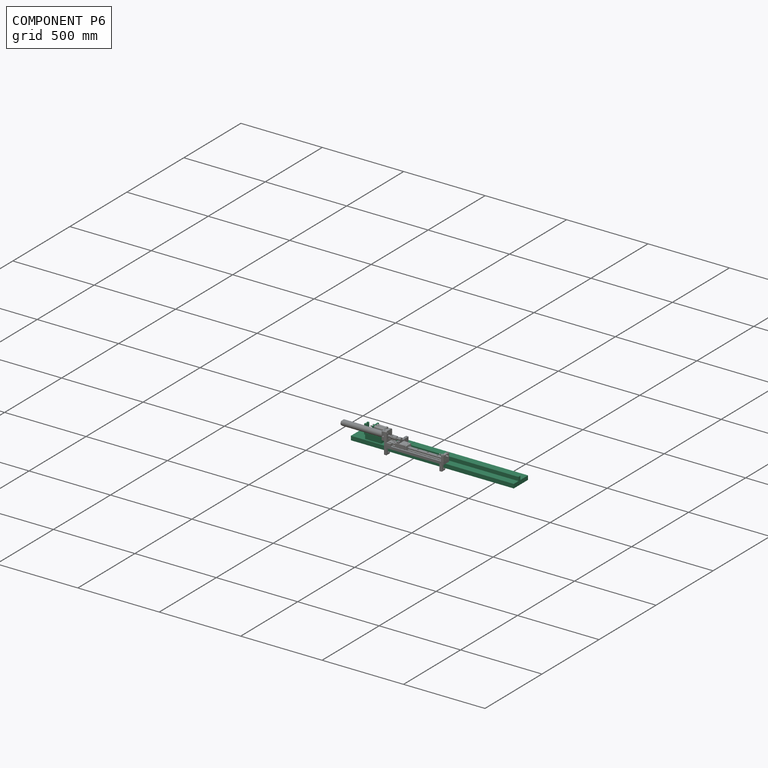
[diagram: component P6 — assembled]
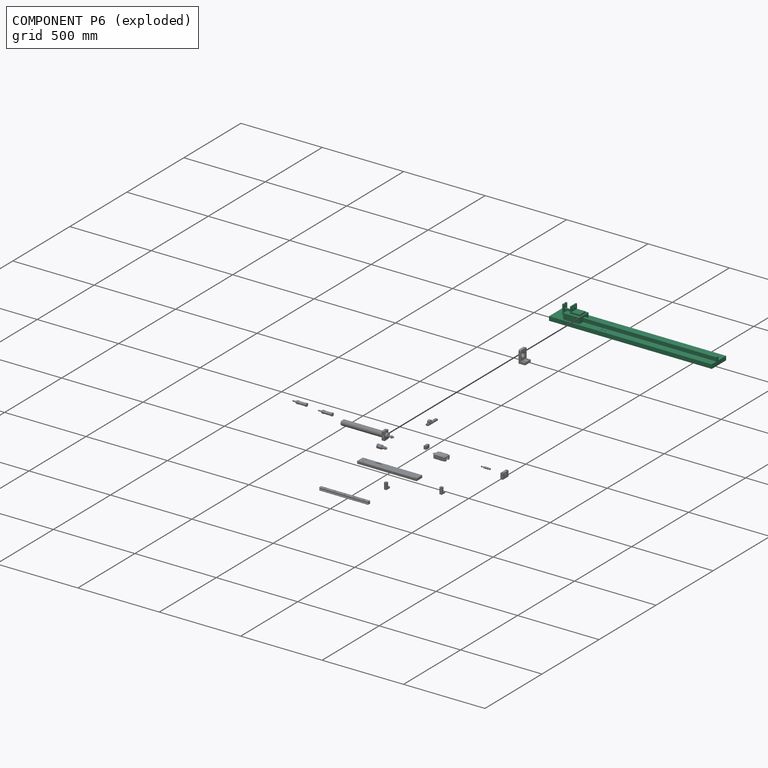
[diagram: component P6 — exploded]
COMPONENT P6 — recipe-attached (CADFS 00789686, mesh-verified: the recipe's output STEP matches this component's geometry to below the mesh-comparison resolution (tessellation chordal tolerance ~1.52 mm)).
Held by: PLANAR mate "Planar 16" to P1; SLIDER mate "Slider 1" to P14; PLANAR mate "Planar 1" to P14; PLANAR mate "Planar 2" to P0; PLANAR mate "Planar 17" to P1; PLANAR mate "Planar 3" to P1; CYLINDRICAL mate "Cylindrical 1" to P0.
Construction recipe (FeatureScript — the CAD program that rebuilds this solid; sketch coordinates are in the units given by the * unit suffixes, e.g. mm):

FeatureScript 1511;
import(path : "onshape/std/geometry.fs", version : "1511.0");
import(path : "onshape/std/common.fs", version : "1511.0");
const mm = millimeter;
const VERTEX = EntityType.VERTEX;
const EDGE = EntityType.EDGE;
const FACE = EntityType.FACE;
const BODY = EntityType.BODY;
function v(x, y){return vector(x, y);}
function OD(order){return orderDisambiguation(order);}
function OSD(set){return originalSetDisambiguation(set);}
function TD(topology){return topologyDisambiguation(topology);}
function TDD(query){return trueDependencyDisambiguation(query);}
function sQuery(a, b, c) {return sketchEntityQuery(a, b, c);}

annotation { "Feature Type Name" : "Feature", "Feature Type Description" : "" }
export const myFeature = defineFeature(function(context is Context, id is Id, definition is map)
    precondition{}
    {
        {
            var Q0;
            Q0=qCreatedBy(makeId("Top.planeOp"),FACE);
            var sketch = newSketch(context, id + "F0", { "sketchPlane" : qUnion([Q0])});
            skLineSegment(sketch, "E0.bottom", {"start": v(0, 0) * mm, "end": v(1000, 0) * mm});
            skLineSegment(sketch, "E0.top", {"start": v(0, 125) * mm, "end": v(1000, 125) * mm});
            skLineSegment(sketch, "E0.left", {"start": v(0, 0) * mm, "end": v(0, 125) * mm});
            skLineSegment(sketch, "E0.right", {"start": v(1000, 0) * mm, "end": v(1000, 125) * mm});
            skSolve(sketch);
        }
        {
            var Q0;
            Q0 = qSketchRegion(id + "F0", true);
            extrude(context, id + "F1", {"entities" : qUnion([Q0]), "depth" : 25 * mm, "offsetDistance" : 25 * mm});
        }
        {
            var Q0;
            Q0=makeQuery(id+"F1.opExtrude","CAP_FACE",FACE,{"disambiguationData":[OSD([sQuery(id+"F0.wireOp",EDGE,"E0.bottom"),sQuery(id+"F0.wireOp",EDGE,"E0.top"),sQuery(id+"F0.wireOp",EDGE,"E0.left"),sQuery(id+"F0.wireOp",EDGE,"E0.right")])],"isStart":false});
            var sketch = newSketch(context, id + "F2", { "sketchPlane" : qUnion([Q0])});
            skLineSegment(sketch, "E1.bottom", {"start": v(180, 41.5) * mm, "end": v(1000, 41.5) * mm});
            skLineSegment(sketch, "E1.top", {"start": v(180, 58.5) * mm, "end": v(1000, 58.5) * mm});
            skLineSegment(sketch, "E1.left", {"start": v(180, 41.5) * mm, "end": v(180, 58.5) * mm});
            skLineSegment(sketch, "E1.right", {"start": v(1000, 41.5) * mm, "end": v(1000, 58.5) * mm});
            skSolve(sketch);
        }
        {
            var Q0;
            Q0 = qSketchRegion(id + "F2", true);
            extrude(context, id + "F3", {"entities" : qUnion([Q0]), "operationType" : NewBodyOperationType.ADD, "depth" : 23 * mm, "offsetDistance" : 25 * mm});
        }
        {
            var Q0;
            Q0=makeQuery(id+"F1.opExtrude","CAP_FACE",FACE,{"disambiguationData":[OSD([sQuery(id+"F0.wireOp",EDGE,"E0.bottom"),sQuery(id+"F0.wireOp",EDGE,"E0.top"),sQuery(id+"F0.wireOp",EDGE,"E0.left"),sQuery(id+"F0.wireOp",EDGE,"E0.right")])],"isStart":false});
            var sketch = newSketch(context, id + "F4", { "sketchPlane" : qUnion([Q0])});
            skCircle(sketch, "E2", {"center": v(312, 20) * mm, "radius": 4 * mm});
            skCircle(sketch, "E3", {"center": v(332, 20) * mm, "radius": 4 * mm});
            skSolve(sketch);
        }
        {
            var Q0;
            Q0 = qSketchRegion(id + "F4", true);
            extrude(context, id + "F5", {"entities" : qUnion([Q0]), "operationType" : NewBodyOperationType.REMOVE, "endBound" : BoundingType.UP_TO_NEXT, "oppositeDirection" : true, "depth" : 25 * mm, "offsetDistance" : 25 * mm});
        }
        {
            var Q0;
            Q0=makeQuery(id+"F1.opExtrude","CAP_FACE",FACE,{"disambiguationData":[OSD([sQuery(id+"F0.wireOp",EDGE,"E0.bottom"),sQuery(id+"F0.wireOp",EDGE,"E0.top"),sQuery(id+"F0.wireOp",EDGE,"E0.left"),sQuery(id+"F0.wireOp",EDGE,"E0.right")])],"isStart":false});
            var sketch = newSketch(context, id + "F6", { "sketchPlane" : qUnion([Q0])});
            skLineSegment(sketch, "E4.bottom", {"start": v(80, 90) * mm, "end": v(180, 90) * mm});
            skLineSegment(sketch, "E4.top", {"start": v(80, 10) * mm, "end": v(180, 10) * mm});
            skLineSegment(sketch, "E4.left", {"start": v(80, 90) * mm, "end": v(80, 10) * mm});
            skLineSegment(sketch, "E4.right", {"start": v(180, 90) * mm, "end": v(180, 10) * mm});
            skSolve(sketch);
        }
        {
            var Q0;
            Q0 = qSketchRegion(id + "F6", true);
            extrude(context, id + "F7", {"entities" : qUnion([Q0]), "operationType" : NewBodyOperationType.ADD, "depth" : 35 * mm, "offsetDistance" : 25 * mm});
        }
        {
            var Q0;
            Q0=makeQuery(id+"F7.opExtrude","CAP_FACE",FACE,{"disambiguationData":[OSD([sQuery(id+"F6.wireOp",EDGE,"E4.bottom"),sQuery(id+"F6.wireOp",EDGE,"E4.top"),sQuery(id+"F6.wireOp",EDGE,"E4.left"),sQuery(id+"F6.wireOp",EDGE,"E4.right")])],"isStart":false});
            var sketch = newSketch(context, id + "F8", { "sketchPlane" : qUnion([Q0])});
            skLineSegment(sketch, "E5.bottom", {"start": v(107, 45) * mm, "end": v(57, 45) * mm});
            skLineSegment(sketch, "E5.top", {"start": v(107, 55) * mm, "end": v(57, 55) * mm});
            skLineSegment(sketch, "E5.left", {"start": v(107, 45) * mm, "end": v(107, 55) * mm});
            skLineSegment(sketch, "E5.right", {"start": v(57, 45) * mm, "end": v(57, 55) * mm});
            skSolve(sketch);
        }
        {
            var Q0;
            Q0 = qSketchRegion(id + "F8", true);
            extrude(context, id + "F9", {"entities" : qUnion([Q0]), "operationType" : NewBodyOperationType.ADD, "depth" : 10 * mm, "offsetDistance" : 25 * mm});
        }
        {
            var Q0;
            Q0=makeQuery(id+"F9.opExtrude","SWEPT_FACE",FACE,{"disambiguationData":[OSD([sQuery(id+"F8.wireOp",EDGE,"E5.right")])]});
            var sketch = newSketch(context, id + "F10", { "sketchPlane" : qUnion([Q0])});
            skLineSegment(sketch, "E6.bottom", {"start": v(-65, 95) * mm, "end": v(-55, 95) * mm});
            skLineSegment(sketch, "E6.top", {"start": v(-65, 35) * mm, "end": v(-55, 35) * mm});
            skLineSegment(sketch, "E6.left", {"start": v(-65, 95) * mm, "end": v(-65, 35) * mm});
            skLineSegment(sketch, "E6.right", {"start": v(-55, 95) * mm, "end": v(-55, 35) * mm});
            skLineSegment(sketch, "E7.bottom", {"start": v(-45, 95) * mm, "end": v(-35, 95) * mm});
            skLineSegment(sketch, "E7.top", {"start": v(-45, 35) * mm, "end": v(-35, 35) * mm});
            skLineSegment(sketch, "E7.left", {"start": v(-45, 95) * mm, "end": v(-45, 35) * mm});
            skLineSegment(sketch, "E7.right", {"start": v(-35, 95) * mm, "end": v(-35, 35) * mm});
            skCircle(sketch, "E8", {"center": v(-60, 90) * mm, "radius": 2.5 * mm});
            skCircle(sketch, "E9", {"center": v(-40, 90) * mm, "radius": 2.5 * mm});
            skSolve(sketch);
        }
        {
            var Q0;
            Q0 = qSketchRegion(id + "F10", true);
            extrude(context, id + "F11", {"entities" : qUnion([Q0]), "operationType" : NewBodyOperationType.ADD, "oppositeDirection" : true, "depth" : 10 * mm, "offsetDistance" : 25 * mm});
        }
        {
            var Q0;
            Q0=makeQuery(id+"F9.opExtrude","SWEPT_FACE",FACE,{"disambiguationData":[OSD([sQuery(id+"F8.wireOp",EDGE,"E5.bottom")])]});
            var sketch = newSketch(context, id + "F12", { "sketchPlane" : qUnion([Q0])});
            skLineSegment(sketch, "E10", {"start": v(172, 60) * mm, "end": v(112, 60) * mm});
            skLineSegment(sketch, "E11", {"start": v(112, 60) * mm, "end": v(112, 100) * mm});
            skLineSegment(sketch, "E12", {"start": v(112, 100) * mm, "end": v(120, 100) * mm});
            skLineSegment(sketch, "E13", {"start": v(120, 100) * mm, "end": v(120, 70) * mm});
            skLineSegment(sketch, "E14", {"start": v(120, 70) * mm, "end": v(172, 70) * mm});
            skLineSegment(sketch, "E15", {"start": v(172, 70) * mm, "end": v(172, 60) * mm});
            skSolve(sketch);
        }
        {
            var Q0;
            Q0 = qSketchRegion(id + "F12", true);
            extrude(context, id + "F13", {"entities" : qUnion([Q0]), "operationType" : NewBodyOperationType.ADD, "depth" : 20 * mm, "offsetDistance" : 25 * mm, "hasSecondDirection" : true, "secondDirectionOppositeDirection" : true, "secondDirectionDepth" : 30 * mm});
        }
        {
            var Q0;
            Q0=makeQuery(id+"F13.opExtrude","SWEPT_FACE",FACE,{"disambiguationData":[OSD([sQuery(id+"F12.wireOp",EDGE,"E13")])]});
            var sketch = newSketch(context, id + "F14", { "sketchPlane" : qUnion([Q0])});
            skCircle(sketch, "E16", {"center": v(40, 90) * mm, "radius": 5 * mm});
            skCircle(sketch, "E17", {"center": v(60, 90) * mm, "radius": 5 * mm});
            skSolve(sketch);
        }
        {
            var Q0;
            Q0 = qSketchRegion(id + "F14", true);
            extrude(context, id + "F15", {"entities" : qUnion([Q0]), "operationType" : NewBodyOperationType.REMOVE, "oppositeDirection" : true, "depth" : 25 * mm, "offsetDistance" : 25 * mm});
        }
        {
            var Q0;
            Q0=makeQuery(id+"F1.opExtrude","CAP_FACE",FACE,{"disambiguationData":[OSD([sQuery(id+"F0.wireOp",EDGE,"E0.bottom"),sQuery(id+"F0.wireOp",EDGE,"E0.top"),sQuery(id+"F0.wireOp",EDGE,"E0.left"),sQuery(id+"F0.wireOp",EDGE,"E0.right")])],"isStart":false});
            var sketch = newSketch(context, id + "F16", { "sketchPlane" : qUnion([Q0])});
            skLineSegment(sketch, "E18", {"start": v(297, 40) * mm, "end": v(307, 40) * mm});
            skLineSegment(sketch, "E19", {"start": v(307, 40) * mm, "end": v(307, 32) * mm});
            skLineSegment(sketch, "E20", {"start": v(307, 32) * mm, "end": v(347, 32) * mm});
            skLineSegment(sketch, "E21", {"start": v(347, 32) * mm, "end": v(347, -10) * mm});
            skLineSegment(sketch, "E22", {"start": v(347, -10) * mm, "end": v(297, -10) * mm});
            skLineSegment(sketch, "E23", {"start": v(297, -10) * mm, "end": v(297, 40) * mm});
            skLineSegment(sketch, "E24.bottom", {"start": v(307, 24.25) * mm, "end": v(337, 24.25) * mm});
            skLineSegment(sketch, "E24.top", {"start": v(307, 15.75) * mm, "end": v(337, 15.75) * mm});
            skArc(sketch, "E25", {"start": v(307, 24.25) * mm, "mid": v(302.75, 20) * mm, "end": v(307, 15.75) * mm});
            skArc(sketch, "E26", {"start": v(337, 15.75) * mm, "mid": v(341.25, 20) * mm, "end": v(337, 24.25) * mm});
            skSolve(sketch);
        }
        {
            var Q0;
            {var subQ13=sQuery(id+"F16.wireOp",EDGE,"E18");Q0=makeQuery(id+"F16.imprint","IMPRINT",FACE,{"disambiguationData":[TD([[makeQuery(id+"F16.imprint","IMPRINT",EDGE,{"derivedFrom":subQ13}),1.0]])]});}
            var sketch = newSketch(context, id + "F17", { "sketchPlane" : qUnion([Q0])});
            skLineSegment(sketch, "E27.bottom", {"start": v(307, 125) * mm, "end": v(306, 125) * mm});
            skLineSegment(sketch, "E27.top", {"start": v(307, 0) * mm, "end": v(306, 0) * mm});
            skLineSegment(sketch, "E27.left", {"start": v(307, 125) * mm, "end": v(307, 0) * mm});
            skLineSegment(sketch, "E27.right", {"start": v(306, 125) * mm, "end": v(306, 0) * mm});
            skSolve(sketch);
        }
        {
            var Q0;
            Q0 = qSketchRegion(id + "F17", true);
            extrude(context, id + "F18", {"entities" : qUnion([Q0]), "operationType" : NewBodyOperationType.ADD, "depth" : 1 * mm, "offsetDistance" : 25 * mm});
        }
    });
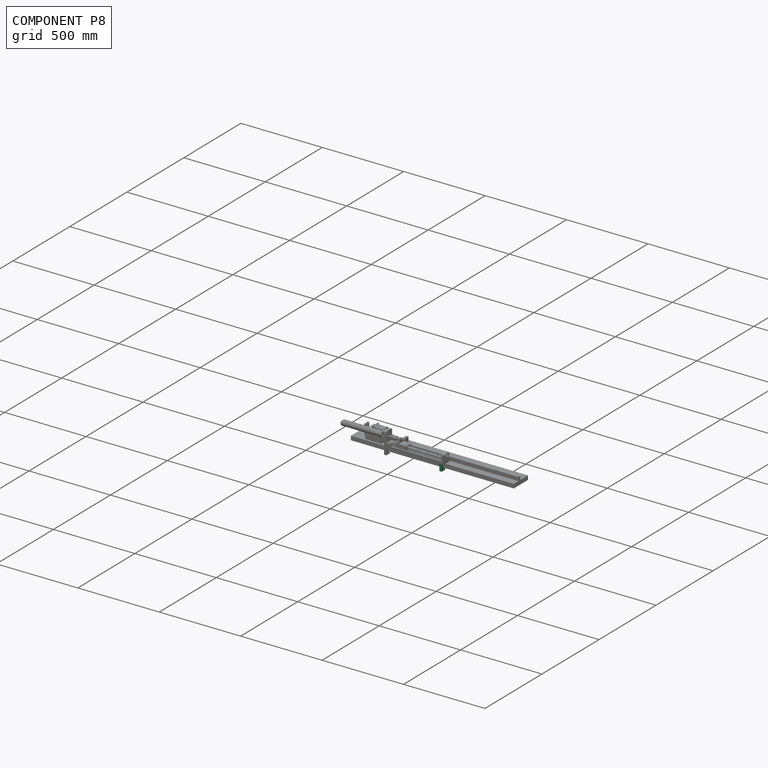
[diagram: component P8 — assembled]
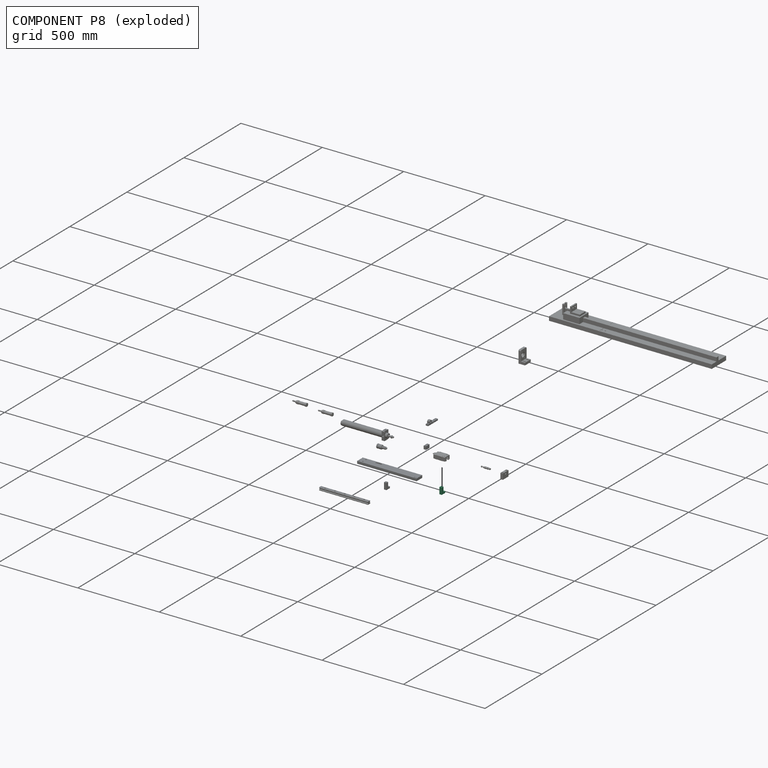
[diagram: component P8 — exploded]
COMPONENT P8 — same part as P3 (CADFS 00789692); its construction recipe is shown at P3.
Held by: CYLINDRICAL mate "Cylindrical 9" to P1; PLANAR mate "Planar 13" to P1.
